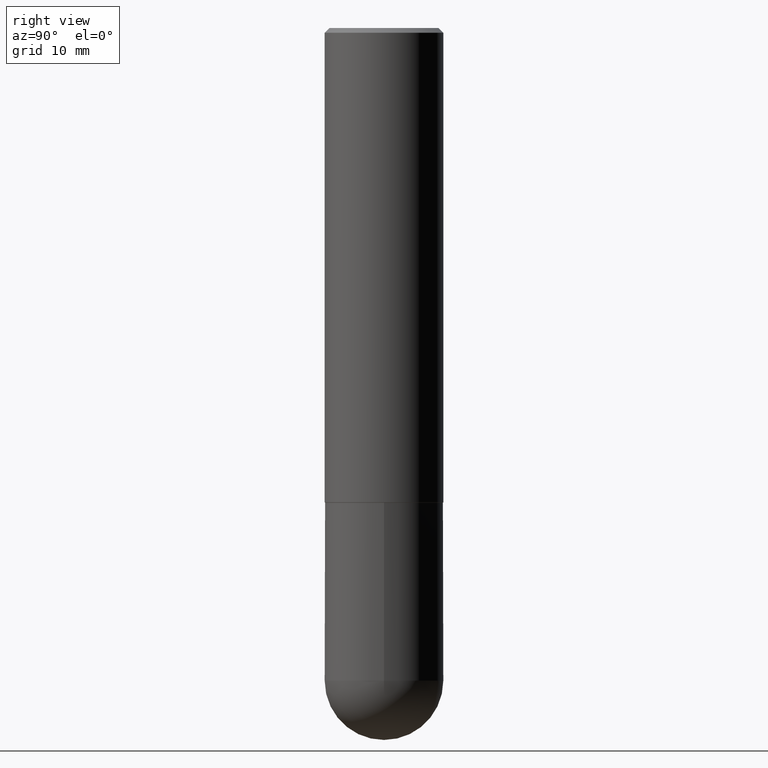
[diagram: clean part render]
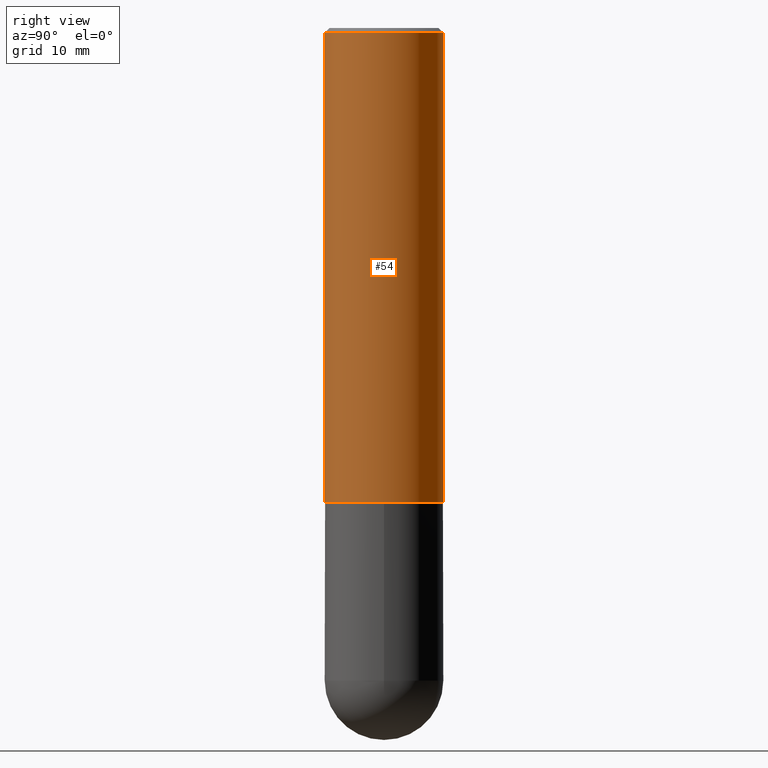
[diagram: same view with one face highlighted and labeled with its STEP entity id]
A machine part, right view. The second image highlights one B-rep face of the part: STEP entity #54.
In plain terms, the highlighted cylindrical surface (partial cylindrical patch) has radius 6.35 mm, axis along (-0, 0, 1).
Its self-contained STEP definition (entity closure, byte-faithful):
#3 = AXIS2_PLACEMENT_3D ( 'NONE', #45, #167, #302 ) ;
#6 = AXIS2_PLACEMENT_3D ( 'NONE', #332, #266, #401 ) ;
#41 = CIRCLE ( 'NONE', #6, 0.2500000000000000000 ) ;
#45 = CARTESIAN_POINT ( 'NONE',  ( 0.000000000000000000, 0.000000000000000000, 0.000000000000000000 ) ) ;
#46 = EDGE_CURVE ( 'NONE', #352, #362, #41, .T. ) ;
#54 = ADVANCED_FACE ( 'NONE', ( #142 ), #273, .T. ) ;
#84 = EDGE_CURVE ( 'NONE', #326, #362, #89, .T. ) ;
#89 = LINE ( 'NONE', #406, #250 ) ;
#97 = CARTESIAN_POINT ( 'NONE',  ( 1.776356839400276103E-15, 0.2499999999999933109, -1.999000000000000998 ) ) ;
#112 = CARTESIAN_POINT ( 'NONE',  ( -1.745740669421567467E-15, -0.2500000000000001110, 8.733344704626194091E-16 ) ) ;
#113 = LINE ( 'NONE', #112, #268 ) ;
#121 = EDGE_CURVE ( 'NONE', #259, #352, #113, .T. ) ;
#142 = FACE_OUTER_BOUND ( 'NONE', #304, .T. ) ;
#146 = CARTESIAN_POINT ( 'NONE',  ( 4.885900605875200945E-29, -6.983182425819101458E-15, -1.999000000000000110 ) ) ;
#153 = DIRECTION ( 'NONE',  ( -2.444172389132166101E-29, 3.493337881850476059E-15, 1.000000000000000000 ) ) ;
#167 = DIRECTION ( 'NONE',  ( -2.444172389132166101E-29, 3.493337881850475664E-15, 1.000000000000000000 ) ) ;
#169 = ORIENTED_EDGE ( 'NONE', *, *, #242, .T. ) ;
#179 = DIRECTION ( 'NONE',  ( -6.982962677686266711E-15, -1.000000000000000000, 3.278217592397113101E-15 ) ) ;
#224 = CARTESIAN_POINT ( 'NONE',  ( 1.745740669421566875E-15, 0.2499999999999999167, -0.02000000000000093023 ) ) ;
#241 = DIRECTION ( 'NONE',  ( -2.444172389132166101E-29, 3.493337881850476059E-15, 1.000000000000000000 ) ) ;
#242 = EDGE_CURVE ( 'NONE', #259, #326, #350, .T. ) ;
#250 = VECTOR ( 'NONE', #153, 39.37007874015748143 ) ;
#259 = VERTEX_POINT ( 'NONE', #342 ) ;
#266 = DIRECTION ( 'NONE',  ( -2.444172389132166101E-29, 3.493337881850475664E-15, 1.000000000000000000 ) ) ;
#268 = VECTOR ( 'NONE', #241, 39.37007874015748143 ) ;
#271 = ORIENTED_EDGE ( 'NONE', *, *, #46, .F. ) ;
#273 = CYLINDRICAL_SURFACE ( 'NONE', #3, 0.2500000000000001110 ) ;
#302 = DIRECTION ( 'NONE',  ( -6.982962677686266711E-15, -1.000000000000000000, 3.493337881850476059E-15 ) ) ;
#304 = EDGE_LOOP ( 'NONE', ( #169, #392, #271, #308 ) ) ;
#308 = ORIENTED_EDGE ( 'NONE', *, *, #121, .F. ) ;
#323 = CARTESIAN_POINT ( 'NONE',  ( -1.715124499442882299E-15, -0.2500000000000000555, -0.01999999999999918163 ) ) ;
#326 = VERTEX_POINT ( 'NONE', #97 ) ;
#332 = CARTESIAN_POINT ( 'NONE',  ( 4.888344778264345199E-31, -6.986675763700970113E-17, -0.02000000000000005593 ) ) ;
#342 = CARTESIAN_POINT ( 'NONE',  ( -1.745740669421519346E-15, -0.2500000000000072164, -1.998999999999999444 ) ) ;
#350 = CIRCLE ( 'NONE', #365, 0.2500000000000002220 ) ;
#352 = VERTEX_POINT ( 'NONE', #323 ) ;
#362 = VERTEX_POINT ( 'NONE', #224 ) ;
#365 = AXIS2_PLACEMENT_3D ( 'NONE', #146, #410, #179 ) ;
#392 = ORIENTED_EDGE ( 'NONE', *, *, #84, .T. ) ;
#401 = DIRECTION ( 'NONE',  ( -6.982962677686265922E-15, -1.000000000000000000, 3.500180241882337261E-15 ) ) ;
#406 = CARTESIAN_POINT ( 'NONE',  ( 1.776356839400251254E-15, 0.2500000000000001110, -8.733344704626194091E-16 ) ) ;
#410 = DIRECTION ( 'NONE',  ( -2.444172389132166101E-29, 3.493337881850475664E-15, 1.000000000000000000 ) ) ;